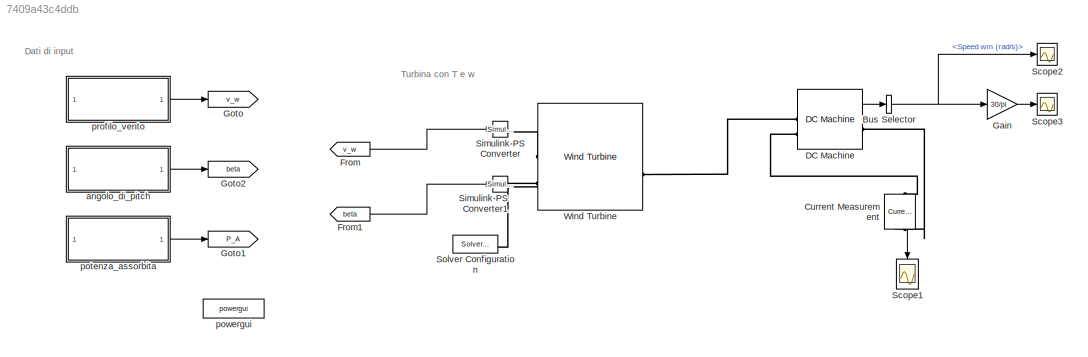
MODEL slx_7409a43c4ddb
KIND model
CONFIG AbsTol = auto
CONFIG EnableMultiTasking = off
CONFIG FixedStep = auto
CONFIG MaxStep = auto
CONFIG MinStep = auto
CONFIG RelTol = 1e-3
CONFIG SampleTimeConstraint = Unconstrained
CONFIG SolverName = VariableStepAuto
CONFIG StartTime = 0.0
CONFIG StopTime = 60
BLOCK [BusSelector] Bus Selector
  OutputSignals = Speed wm (rad/s)
BLOCK [Reference] Current Measurement  REF=spsCurrentMeasurementLib/Current Measurement
  LibrarySourceBlock = sps_lib/Sensors and Measurements/Current Measurement
  NameLocation = left
  SourceBlock = spsCurrentMeasurementLib/Current Measurement
  SourceType = Current Measurement
  UserDataPersistent = on
BLOCK [Reference] DC Machine  REF=spsDCMachineLib/DC Machine
  LibrarySourceBlock = sps_lib/Electrical Machines/DC Machine
  SourceBlock = spsDCMachineLib/DC Machine
  SourceType = DC machine
BLOCK [From] From
  GotoTag = v_w
  TagVisibility = global
BLOCK [From] From1
  GotoTag = beta
  TagVisibility = global
BLOCK [Gain] Gain
  Gain = 30/pi
BLOCK [Goto] Goto
  GotoTag = v_w
  TagVisibility = global
BLOCK [Goto] Goto1
  GotoTag = P_A
  TagVisibility = global
BLOCK [Goto] Goto2
  GotoTag = beta
  TagVisibility = global
BLOCK [Scope] Scope1
  Floating = off
  NameLocation = left
  NumInputPorts = 1
  ScopeSpecificationString = Simulink.scopes.TimeScopeBlockCfg('CurrentConfiguration', extmgr.ConfigurationSet(extmgr.Configuration('Core','General UI',true),extmgr.Configuration('Core','Source UI',true),extmgr.Configuration('Sources','WiredSimulink',true,'DataLoggingVariableName','ScopeData1'),extmgr.Configuration('Visuals','Time Domain',true,'SerializedDisplays',{struct('MinYLimReal','-1.03683','MaxYLimReal','9.33147','YLab...<+1794ch>
BLOCK [Scope] Scope2
  Floating = off
  NumInputPorts = 1
  ScopeSpecificationString = Simulink.scopes.TimeScopeBlockCfg('CurrentConfiguration', extmgr.ConfigurationSet(extmgr.Configuration('Core','General UI',true),extmgr.Configuration('Core','Source UI',true),extmgr.Configuration('Sources','WiredSimulink',true,'DataLoggingVariableName','ScopeData1'),extmgr.Configuration('Visuals','Time Domain',true,'SerializedDisplays',{struct('MinYLimReal','-0.34561','MaxYLimReal','3.11049','YLab...<+1928ch>
BLOCK [Scope] Scope3
  Floating = off
  NumInputPorts = 1
  ScopeSpecificationString = Simulink.scopes.TimeScopeBlockCfg('CurrentConfiguration', extmgr.ConfigurationSet(extmgr.Configuration('Core','General UI',true),extmgr.Configuration('Core','Source UI',true),extmgr.Configuration('Sources','WiredSimulink',true,'DataLoggingVariableName','ScopeData1'),extmgr.Configuration('Visuals','Time Domain',true,'SerializedDisplays',{struct('MinYLimReal','-3.30033','MaxYLimReal','29.70299','YLa...<+1920ch>
BLOCK [Reference] Simulink-PS Converter  REF=nesl_utility/Simulink-PS
Converter
  SourceBlock = nesl_utility/Simulink-PS\nConverter
  SourceType = Simulink-PS\nConverter
BLOCK [Reference] Simulink-PS Converter1  REF=nesl_utility/Simulink-PS
Converter
  SourceBlock = nesl_utility/Simulink-PS\nConverter
  SourceType = Simulink-PS\nConverter
BLOCK [Reference] Solver Configuration  REF=nesl_utility/Solver
Configuration
  SourceBlock = nesl_utility/Solver\nConfiguration
  SourceType = Solver\nConfiguration
BLOCK [Reference] Wind Turbine  REF=sdl_lib/Engines & Motors/Wind Turbine
  SourceBlock = sdl_lib/Engines & Motors/Wind Turbine
  SourceType = Wind Turbine
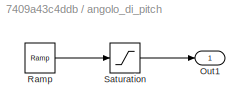
BLOCK [SubSystem] angolo_di_pitch
BLOCK [Outport] angolo_di_pitch/Out1
  Unit = deg
BLOCK [Reference] angolo_di_pitch/Ramp  REF=simulink/Sources/Ramp
  SourceBlock = simulink/Sources/Ramp
  SourceType = Ramp
BLOCK [Saturate] angolo_di_pitch/Saturation
  LowerLimit = 0
  UpperLimit = 20
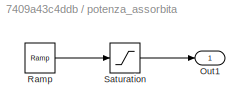
BLOCK [SubSystem] potenza_assorbita
BLOCK [Outport] potenza_assorbita/Out1
BLOCK [Reference] potenza_assorbita/Ramp  REF=simulink/Sources/Ramp
  SourceBlock = simulink/Sources/Ramp
  SourceType = Ramp
BLOCK [Saturate] potenza_assorbita/Saturation
  LowerLimit = 0
  UpperLimit = 1000
BLOCK [Reference] powergui  REF=sps_lib/powergui
  LibrarySourceBlock = sps_lib/powergui
  NameLocation = left
  Priority = 1
  SourceBlock = sps_lib/powergui
  SourceType = PSB option menu block
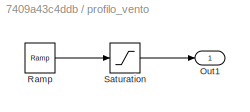
BLOCK [SubSystem] profilo_vento
BLOCK [Outport] profilo_vento/Out1
BLOCK [Reference] profilo_vento/Ramp  REF=simulink/Sources/Ramp
  SourceBlock = simulink/Sources/Ramp
  SourceType = Ramp
BLOCK [Saturate] profilo_vento/Saturation
  LowerLimit = 0
  UpperLimit = 12
ANNOTATION (root): Dati di input
ANNOTATION (root): Turbina con T e w
NET Bus Selector:1 -> Gain:1, Scope2:1
LINE Current Measurement:1 -> Scope1:1
LINE DC Machine:1 -> Bus Selector:1
LINE From1:1 -> Simulink-PS Converter1:1
LINE From:1 -> Simulink-PS Converter:1
LINE Gain:1 -> Scope3:1
LINE angolo_di_pitch/Ramp:1 -> angolo_di_pitch/Saturation:1
LINE angolo_di_pitch/Saturation:1 -> angolo_di_pitch/Out1:1
LINE angolo_di_pitch:1 -> Goto2:1
LINE potenza_assorbita/Ramp:1 -> potenza_assorbita/Saturation:1
LINE potenza_assorbita/Saturation:1 -> potenza_assorbita/Out1:1
LINE potenza_assorbita:1 -> Goto1:1
LINE profilo_vento/Ramp:1 -> profilo_vento/Saturation:1
LINE profilo_vento/Saturation:1 -> profilo_vento/Out1:1
LINE profilo_vento:1 -> Goto:1
PLINE Current Measurement:LConn1 -- DC Machine:LConn2
PLINE Current Measurement:RConn1 -- DC Machine:RConn1
PLINE DC Machine:LConn1 -- Wind Turbine:RConn1
PNET net1: Simulink-PS Converter1:RConn1 -- Solver Configuration:RConn1 -- Wind Turbine:LConn2
PLINE Simulink-PS Converter:RConn1 -- Wind Turbine:LConn1
note: NET lines group one-source signal fan-out (src -> all destinations, sorted); 1:1 wires keep LINE; PNET lines group multi-terminal physical nets as a canonical sorted terminal list (undirected conserving connections); 2-terminal nets keep the pairwise PLINE form
